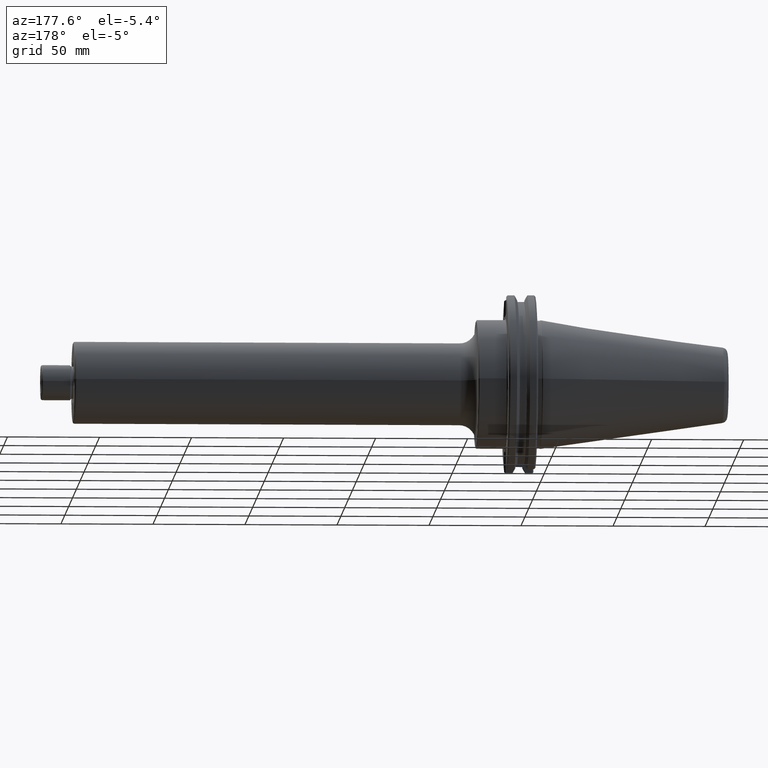
[diagram: clean part render]
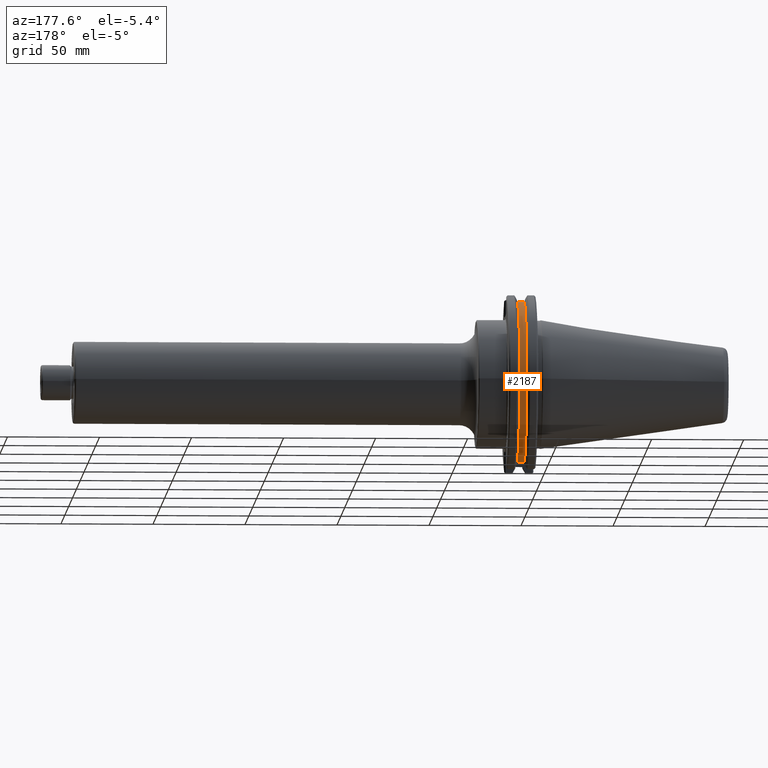
[diagram: same view with one face highlighted and labeled with its STEP entity id]
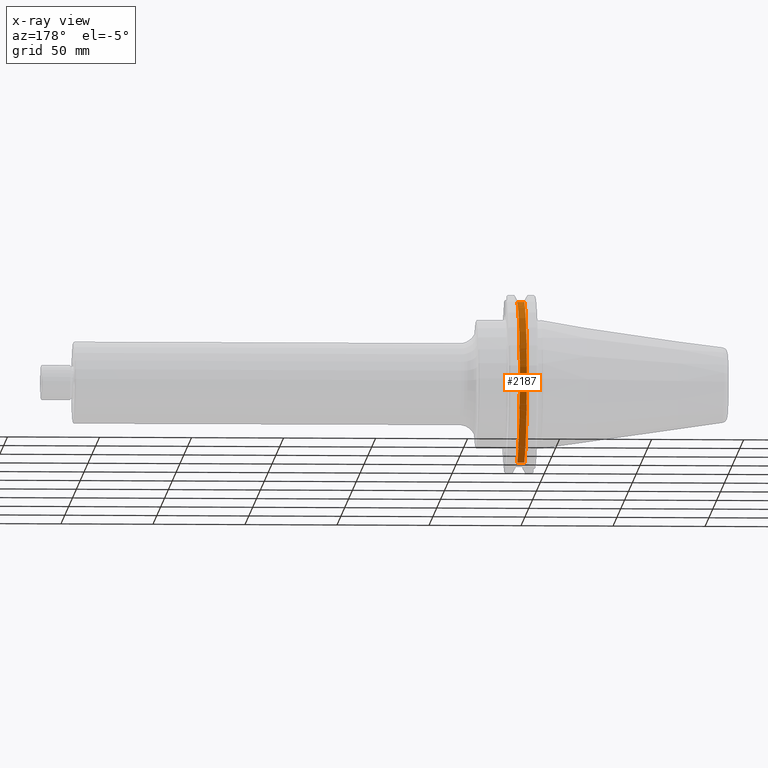
[diagram: x-ray of the same camera — body ghosted, the highlighted face saturated]
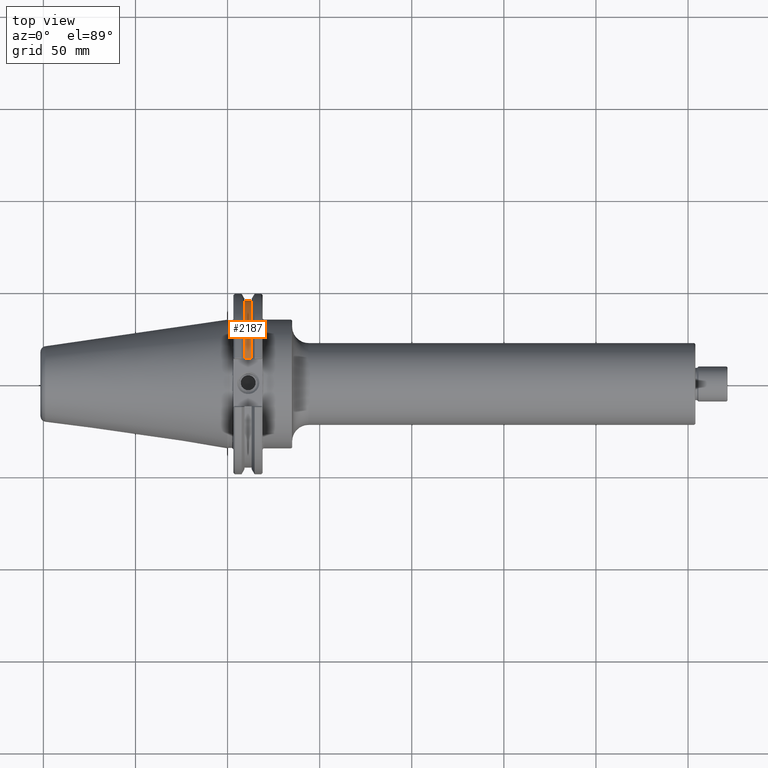
[diagram: same view with one face highlighted and labeled with its STEP entity id]
A machine part, auxiliary view. The second image highlights one B-rep face of the part: STEP entity #2187.
The next image is the same camera in x-ray: the body ghosted, the highlighted face saturated — about 0% of this face is hidden behind the body in this view.
A second angle (top view) of the same face is appended — the face is thin or edge-on in the first view.
In plain terms, the highlighted cylindrical surface (partial cylindrical patch) has radius 45.6438 mm, axis along (-1, -0, 0).
Its self-contained STEP definition (entity closure, byte-faithful):
#87=LINE('',#3888,#181);
#96=LINE('',#4012,#190);
#181=VECTOR('',#2783,0.393700787401575);
#190=VECTOR('',#2798,0.393700787401575);
#586=CIRCLE('',#2345,1.79699999999976);
#590=CIRCLE('',#2351,1.79699999999974);
#754=FACE_OUTER_BOUND('',#954,.T.);
#954=EDGE_LOOP('',(#1994,#1995,#1996,#1997));
#1085=VERTEX_POINT('',#3748);
#1086=VERTEX_POINT('',#3750);
#1094=VERTEX_POINT('',#3873);
#1095=VERTEX_POINT('',#3875);
#1303=EDGE_CURVE('',#1085,#1086,#586,.T.);
#1314=EDGE_CURVE('',#1095,#1094,#590,.T.);
#1318=EDGE_CURVE('',#1094,#1086,#87,.T.);
#1332=EDGE_CURVE('',#1085,#1095,#96,.T.);
#1994=ORIENTED_EDGE('',*,*,#1318,.T.);
#1995=ORIENTED_EDGE('',*,*,#1303,.F.);
#1996=ORIENTED_EDGE('',*,*,#1332,.T.);
#1997=ORIENTED_EDGE('',*,*,#1314,.T.);
#2059=CYLINDRICAL_SURFACE('',#2465,1.79699999999975);
#2187=ADVANCED_FACE('',(#754),#2059,.T.);
#2345=AXIS2_PLACEMENT_3D('',#3751,#2762,#2763);
#2351=AXIS2_PLACEMENT_3D('',#3876,#2776,#2777);
#2465=AXIS2_PLACEMENT_3D('',#4593,#3073,#3074);
#2762=DIRECTION('center_axis',(-1.,-1.03378135458692E-13,0.));
#2763=DIRECTION('ref_axis',(-1.03360997677682E-13,1.,0.));
#2776=DIRECTION('center_axis',(-1.,-1.03378135458692E-13,0.));
#2777=DIRECTION('ref_axis',(-1.03360997677682E-13,1.,0.));
#2783=DIRECTION('',(-1.,-1.03378135458692E-13,0.));
#2798=DIRECTION('',(1.,1.03378135458692E-13,0.));
#3073=DIRECTION('center_axis',(-1.,-1.03378135458692E-13,0.));
#3074=DIRECTION('ref_axis',(-1.03360997677682E-13,1.,0.));
#3748=CARTESIAN_POINT('',(0.362849999999929,0.507500000000179,1.72384823867972));
#3750=CARTESIAN_POINT('',(0.362849999999929,0.507500000000244,-1.7238482386797));
#3751=CARTESIAN_POINT('Origin',(0.362849999999981,2.44267027368568E-13,
0.));
#3873=CARTESIAN_POINT('',(0.513849999999929,0.50750000000026,-1.72384823867969));
#3875=CARTESIAN_POINT('',(0.513849999999929,0.507500000000179,1.72384823867971));
#3876=CARTESIAN_POINT('Origin',(0.513849999999981,2.59877125822831E-13,
0.));
#3888=CARTESIAN_POINT('',(0.438349999999929,0.507500000000252,-1.7238482386797));
#4012=CARTESIAN_POINT('',(0.438349999999929,0.507500000000179,1.72384823867972));
#4593=CARTESIAN_POINT('Origin',(0.438349999999981,2.520720765957E-13,0.));